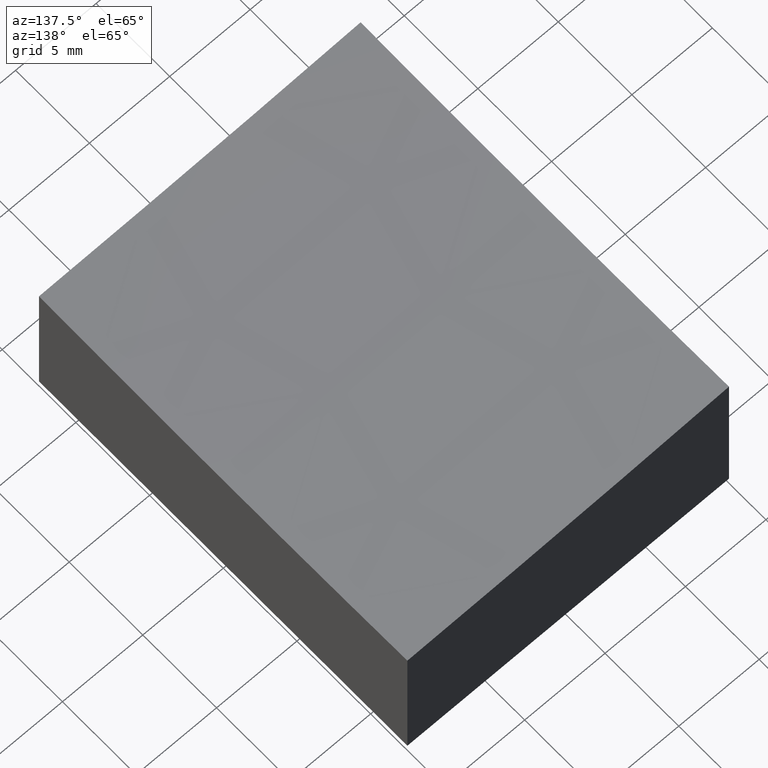
[diagram: clean part render]
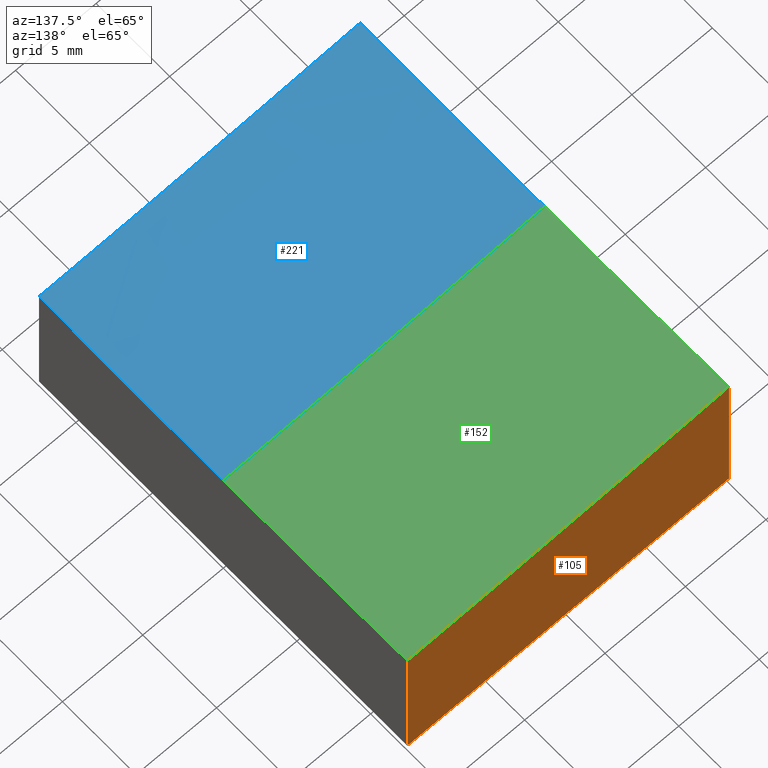
[diagram: same view with three faces highlighted in distinct colors, each labeled with its STEP entity id]
A machine part, auxiliary view with three faces highlighted in distinct colors.
Their STEP definitions:

[orange] entity #105 — the highlighted planar face has unit normal (0, -1, 0).
#2 = CARTESIAN_POINT ( 'NONE',  ( 10.00000000000000178, 12.50000000000000000, 10.00000000000000000 ) ) ;
#12 = CARTESIAN_POINT ( 'NONE',  ( 10.00000000000000178, 12.50000000000000000, -10.00000000000000000 ) ) ;
#15 = AXIS2_PLACEMENT_3D ( 'NONE', #214, #90, #47 ) ;
#19 = EDGE_CURVE ( 'NONE', #112, #48, #201, .T. ) ;
#20 = DIRECTION ( 'NONE',  ( -0.000000000000000000, -0.000000000000000000, -1.000000000000000000 ) ) ;
#26 = ORIENTED_EDGE ( 'NONE', *, *, #19, .T. ) ;
#29 = VECTOR ( 'NONE', #84, 1000.000000000000000 ) ;
#47 = DIRECTION ( 'NONE',  ( 1.000000000000000000, 1.735571129814823690E-16, 0.000000000000000000 ) ) ;
#48 = VERTEX_POINT ( 'NONE', #196 ) ;
#60 = LINE ( 'NONE', #2, #29 ) ;
#64 = DIRECTION ( 'NONE',  ( 1.000000000000000000, 1.734723475976807094E-16, 0.000000000000000000 ) ) ;
#69 = ORIENTED_EDGE ( 'NONE', *, *, #191, .F. ) ;
#71 = ORIENTED_EDGE ( 'NONE', *, *, #98, .T. ) ;
#84 = DIRECTION ( 'NONE',  ( -0.000000000000000000, -0.000000000000000000, -1.000000000000000000 ) ) ;
#90 = DIRECTION ( 'NONE',  ( 1.734723475976807094E-16, -1.000000000000000000, 0.000000000000000000 ) ) ;
#98 = EDGE_CURVE ( 'NONE', #48, #243, #60, .T. ) ;
#105 = ADVANCED_FACE ( 'NONE', ( #162 ), #127, .F. ) ;
#110 = LINE ( 'NONE', #165, #218 ) ;
#112 = VERTEX_POINT ( 'NONE', #146 ) ;
#127 = PLANE ( 'NONE',  #170 ) ;
#143 = DIRECTION ( 'NONE',  ( -1.000000000000000000, -1.734723475976807094E-16, 0.000000000000000000 ) ) ;
#145 = ORIENTED_EDGE ( 'NONE', *, *, #174, .T. ) ;
#146 = CARTESIAN_POINT ( 'NONE',  ( -10.00000000000000000, 12.49999999999999645, -0.02224248780913207213 ) ) ;
#157 = DIRECTION ( 'NONE',  ( 1.734723475976807094E-16, -1.000000000000000000, 0.000000000000000000 ) ) ;
#162 = FACE_OUTER_BOUND ( 'NONE', #163, .T. ) ;
#163 = EDGE_LOOP ( 'NONE', ( #69, #26, #71, #145 ) ) ;
#165 = CARTESIAN_POINT ( 'NONE',  ( -9.999999999999998224, 12.49999999999999645, 10.00000000000000000 ) ) ;
#167 = CARTESIAN_POINT ( 'NONE',  ( 10.00000000000000178, 12.50000000000000000, 10.00000000000000000 ) ) ;
#170 = AXIS2_PLACEMENT_3D ( 'NONE', #167, #157, #64 ) ;
#174 = EDGE_CURVE ( 'NONE', #243, #193, #277, .T. ) ;
#183 = VECTOR ( 'NONE', #143, 1000.000000000000000 ) ;
#191 = EDGE_CURVE ( 'NONE', #112, #193, #110, .T. ) ;
#192 = CARTESIAN_POINT ( 'NONE',  ( 10.00000000000000178, 12.50000000000000000, -10.00000000000000000 ) ) ;
#193 = VERTEX_POINT ( 'NONE', #216 ) ;
#196 = CARTESIAN_POINT ( 'NONE',  ( 10.00000000000000178, 12.50000000000000000, -0.7733733004237630659 ) ) ;
#201 = CIRCLE ( 'NONE', #15, 399.8046397929868476 ) ;
#214 = CARTESIAN_POINT ( 'NONE',  ( 15.00000000000004974, 12.50000000000000178, 399.0000000000000000 ) ) ;
#216 = CARTESIAN_POINT ( 'NONE',  ( -9.999999999999998224, 12.49999999999999645, -10.00000000000000000 ) ) ;
#218 = VECTOR ( 'NONE', #20, 1000.000000000000000 ) ;
#243 = VERTEX_POINT ( 'NONE', #12 ) ;
#277 = LINE ( 'NONE', #192, #183 ) ;

[blue] entity #221 — the highlighted spherical surface has radius 400 mm.
#4 = CARTESIAN_POINT ( 'NONE',  ( -9.999999999999996447, 0.000000000000000000, -0.2179855667827079735 ) ) ;
#6 = VERTEX_POINT ( 'NONE', #4 ) ;
#18 = DIRECTION ( 'NONE',  ( 0.000000000000000000, 0.000000000000000000, 1.000000000000000000 ) ) ;
#22 = DIRECTION ( 'NONE',  ( -1.000000000000000000, -1.735571129814823690E-16, 0.000000000000000000 ) ) ;
#23 = DIRECTION ( 'NONE',  ( 0.000000000000000000, -1.000000000000000000, 0.000000000000000000 ) ) ;
#24 = CARTESIAN_POINT ( 'NONE',  ( 10.00000000000000178, 0.000000000000000000, -0.9687487792014171095 ) ) ;
#27 = ORIENTED_EDGE ( 'NONE', *, *, #245, .F. ) ;
#31 = AXIS2_PLACEMENT_3D ( 'NONE', #92, #23, #238 ) ;
#35 = CARTESIAN_POINT ( 'NONE',  ( 15.00000000000005151, 0.000000000000000000, 399.0000000000000000 ) ) ;
#38 = AXIS2_PLACEMENT_3D ( 'NONE', #35, #40, #204 ) ;
#40 = DIRECTION ( 'NONE',  ( 0.000000000000000000, 1.000000000000000000, -0.000000000000000000 ) ) ;
#42 = ORIENTED_EDGE ( 'NONE', *, *, #267, .F. ) ;
#49 = EDGE_CURVE ( 'NONE', #6, #194, #228, .T. ) ;
#55 = DIRECTION ( 'NONE',  ( -1.000000000000000000, 0.000000000000000000, 0.000000000000000000 ) ) ;
#61 = DIRECTION ( 'NONE',  ( 0.000000000000000000, 0.000000000000000000, -1.000000000000000000 ) ) ;
#77 = CARTESIAN_POINT ( 'NONE',  ( 10.00000000000000178, 0.000000000000000000, 399.0000000000000000 ) ) ;
#81 = EDGE_LOOP ( 'NONE', ( #241, #27, #242, #42 ) ) ;
#82 = CARTESIAN_POINT ( 'NONE',  ( 10.00000000000000178, -12.50000000000000000, -0.7733733004237630659 ) ) ;
#92 = CARTESIAN_POINT ( 'NONE',  ( 15.00000000000005151, 0.000000000000000000, 399.0000000000000000 ) ) ;
#95 = AXIS2_PLACEMENT_3D ( 'NONE', #77, #55, #18 ) ;
#119 = FACE_OUTER_BOUND ( 'NONE', #81, .T. ) ;
#126 = VERTEX_POINT ( 'NONE', #82 ) ;
#131 = VERTEX_POINT ( 'NONE', #144 ) ;
#134 = AXIS2_PLACEMENT_3D ( 'NONE', #256, #137, #61 ) ;
#135 = EDGE_CURVE ( 'NONE', #126, #131, #249, .T. ) ;
#137 = DIRECTION ( 'NONE',  ( 1.000000000000000000, 0.000000000000000000, 0.000000000000000000 ) ) ;
#144 = CARTESIAN_POINT ( 'NONE',  ( -9.999999999999996447, -12.50000000000000355, -0.02224248780913207213 ) ) ;
#164 = CIRCLE ( 'NONE', #134, 399.2179855667827155 ) ;
#194 = VERTEX_POINT ( 'NONE', #24 ) ;
#197 = CIRCLE ( 'NONE', #95, 399.9687487792014053 ) ;
#204 = DIRECTION ( 'NONE',  ( -1.000000000000000000, 0.000000000000000000, 1.387778780781445676E-16 ) ) ;
#213 = CARTESIAN_POINT ( 'NONE',  ( 15.00000000000005329, -12.49999999999999822, 399.0000000000000000 ) ) ;
#221 = ADVANCED_FACE ( 'NONE', ( #119 ), #227, .F. ) ;
#224 = AXIS2_PLACEMENT_3D ( 'NONE', #213, #275, #22 ) ;
#227 = SPHERICAL_SURFACE ( 'NONE', #38, 399.9999999999999432 ) ;
#228 = CIRCLE ( 'NONE', #31, 399.9999999999999432 ) ;
#238 = DIRECTION ( 'NONE',  ( 0.000000000000000000, 0.000000000000000000, -1.000000000000000000 ) ) ;
#241 = ORIENTED_EDGE ( 'NONE', *, *, #49, .F. ) ;
#242 = ORIENTED_EDGE ( 'NONE', *, *, #135, .F. ) ;
#245 = EDGE_CURVE ( 'NONE', #131, #6, #164, .T. ) ;
#249 = CIRCLE ( 'NONE', #224, 399.8046397929868476 ) ;
#256 = CARTESIAN_POINT ( 'NONE',  ( -9.999999999999998224, 0.000000000000000000, 399.0000000000000000 ) ) ;
#267 = EDGE_CURVE ( 'NONE', #194, #126, #197, .T. ) ;
#275 = DIRECTION ( 'NONE',  ( -1.734723475976807094E-16, 1.000000000000000000, 0.000000000000000000 ) ) ;

[green] entity #152 — the highlighted spherical surface has radius 400 mm.
#4 = CARTESIAN_POINT ( 'NONE',  ( -9.999999999999996447, 0.000000000000000000, -0.2179855667827079735 ) ) ;
#6 = VERTEX_POINT ( 'NONE', #4 ) ;
#7 = AXIS2_PLACEMENT_3D ( 'NONE', #65, #240, #44 ) ;
#15 = AXIS2_PLACEMENT_3D ( 'NONE', #214, #90, #47 ) ;
#19 = EDGE_CURVE ( 'NONE', #112, #48, #201, .T. ) ;
#23 = DIRECTION ( 'NONE',  ( 0.000000000000000000, -1.000000000000000000, 0.000000000000000000 ) ) ;
#24 = CARTESIAN_POINT ( 'NONE',  ( 10.00000000000000178, 0.000000000000000000, -0.9687487792014171095 ) ) ;
#31 = AXIS2_PLACEMENT_3D ( 'NONE', #92, #23, #238 ) ;
#41 = DIRECTION ( 'NONE',  ( 1.000000000000000000, 0.000000000000000000, 0.000000000000000000 ) ) ;
#43 = DIRECTION ( 'NONE',  ( 0.000000000000000000, 0.000000000000000000, -1.000000000000000000 ) ) ;
#44 = DIRECTION ( 'NONE',  ( 0.000000000000000000, 0.000000000000000000, 1.000000000000000000 ) ) ;
#47 = DIRECTION ( 'NONE',  ( 1.000000000000000000, 1.735571129814823690E-16, 0.000000000000000000 ) ) ;
#48 = VERTEX_POINT ( 'NONE', #196 ) ;
#49 = EDGE_CURVE ( 'NONE', #6, #194, #228, .T. ) ;
#56 = AXIS2_PLACEMENT_3D ( 'NONE', #255, #239, #86 ) ;
#65 = CARTESIAN_POINT ( 'NONE',  ( 10.00000000000000178, 0.000000000000000000, 399.0000000000000000 ) ) ;
#72 = CIRCLE ( 'NONE', #7, 399.9687487792014053 ) ;
#74 = EDGE_CURVE ( 'NONE', #48, #194, #72, .T. ) ;
#86 = DIRECTION ( 'NONE',  ( -1.000000000000000000, 0.000000000000000000, 1.387778780781445676E-16 ) ) ;
#90 = DIRECTION ( 'NONE',  ( 1.734723475976807094E-16, -1.000000000000000000, 0.000000000000000000 ) ) ;
#92 = CARTESIAN_POINT ( 'NONE',  ( 15.00000000000005151, 0.000000000000000000, 399.0000000000000000 ) ) ;
#93 = EDGE_CURVE ( 'NONE', #6, #112, #156, .T. ) ;
#111 = EDGE_LOOP ( 'NONE', ( #265, #129, #149, #169 ) ) ;
#112 = VERTEX_POINT ( 'NONE', #146 ) ;
#129 = ORIENTED_EDGE ( 'NONE', *, *, #49, .T. ) ;
#146 = CARTESIAN_POINT ( 'NONE',  ( -10.00000000000000000, 12.49999999999999645, -0.02224248780913207213 ) ) ;
#149 = ORIENTED_EDGE ( 'NONE', *, *, #74, .F. ) ;
#152 = ADVANCED_FACE ( 'NONE', ( #258 ), #160, .F. ) ;
#156 = CIRCLE ( 'NONE', #175, 399.2179855667827155 ) ;
#160 = SPHERICAL_SURFACE ( 'NONE', #56, 399.9999999999999432 ) ;
#169 = ORIENTED_EDGE ( 'NONE', *, *, #19, .F. ) ;
#175 = AXIS2_PLACEMENT_3D ( 'NONE', #185, #41, #43 ) ;
#185 = CARTESIAN_POINT ( 'NONE',  ( -9.999999999999998224, 0.000000000000000000, 399.0000000000000000 ) ) ;
#194 = VERTEX_POINT ( 'NONE', #24 ) ;
#196 = CARTESIAN_POINT ( 'NONE',  ( 10.00000000000000178, 12.50000000000000000, -0.7733733004237630659 ) ) ;
#201 = CIRCLE ( 'NONE', #15, 399.8046397929868476 ) ;
#214 = CARTESIAN_POINT ( 'NONE',  ( 15.00000000000004974, 12.50000000000000178, 399.0000000000000000 ) ) ;
#228 = CIRCLE ( 'NONE', #31, 399.9999999999999432 ) ;
#238 = DIRECTION ( 'NONE',  ( 0.000000000000000000, 0.000000000000000000, -1.000000000000000000 ) ) ;
#239 = DIRECTION ( 'NONE',  ( 0.000000000000000000, 1.000000000000000000, -0.000000000000000000 ) ) ;
#240 = DIRECTION ( 'NONE',  ( -1.000000000000000000, 0.000000000000000000, 0.000000000000000000 ) ) ;
#255 = CARTESIAN_POINT ( 'NONE',  ( 15.00000000000005151, 0.000000000000000000, 399.0000000000000000 ) ) ;
#258 = FACE_OUTER_BOUND ( 'NONE', #111, .T. ) ;
#265 = ORIENTED_EDGE ( 'NONE', *, *, #93, .F. ) ;